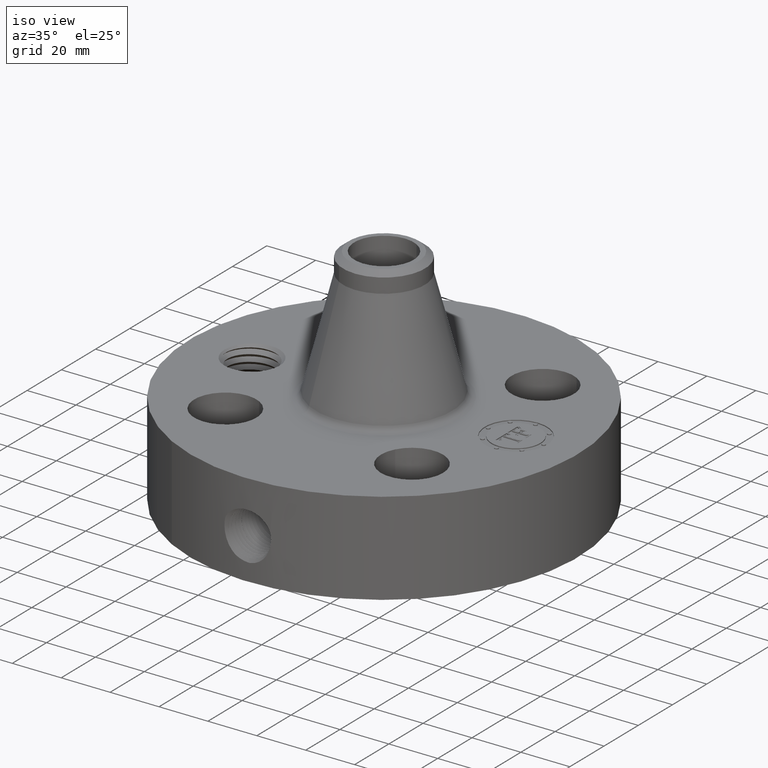
[diagram: clean part render]
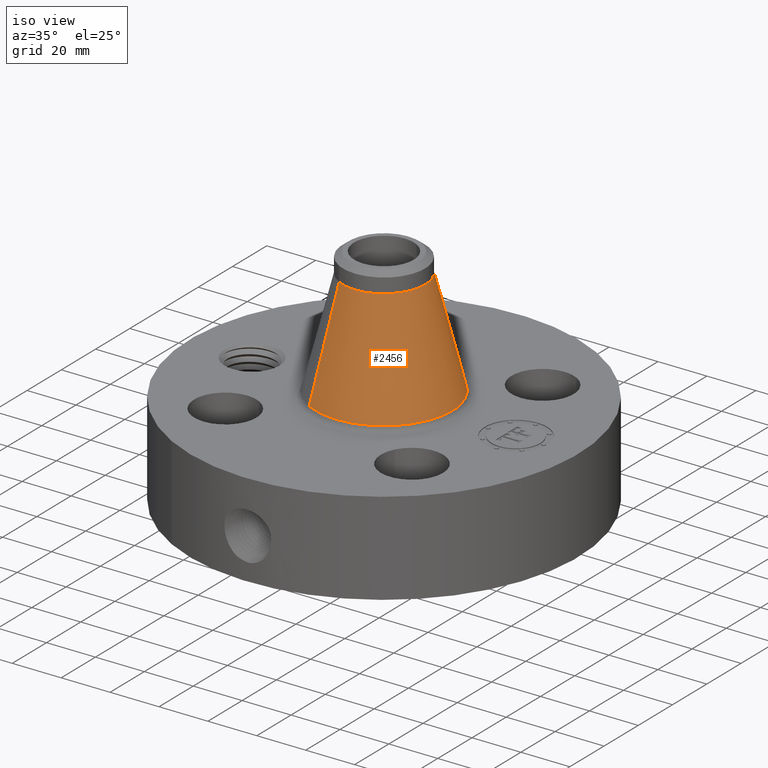
[diagram: same view with one face highlighted and labeled with its STEP entity id]
A machine part, iso view. The second image highlights one B-rep face of the part: STEP entity #2456.
In plain terms, the highlighted conical surface has half-angle 14.447 deg.
Its self-contained STEP definition (entity closure, byte-faithful):
#1842=AXIS2_PLACEMENT_3D('Circle Axis2P3D',#1840,#1841,$) ;
#2429=AXIS2_PLACEMENT_3D('Cone Axis2P3D',#2426,#2427,#2428) ;
#2440=AXIS2_PLACEMENT_3D('Circle Axis2P3D',#2438,#2439,$) ;
#1837=CARTESIAN_POINT('Vertex',(0.528229843363,0.966918242518,1.84006221555)) ;
#1840=CARTESIAN_POINT('Axis2P3D Location',(0.,0.,1.84006221555)) ;
#1844=CARTESIAN_POINT('Vertex',(-0.528229843363,-0.966918242518,1.84006221555)) ;
#2426=CARTESIAN_POINT('Axis2P3D Location',(0.,0.,3.55492912713)) ;
#2431=CARTESIAN_POINT('Line Origine',(0.422325349421,0.773061366684,2.69749567134)) ;
#2435=CARTESIAN_POINT('Vertex',(0.31642085548,0.57920449085,3.55492912713)) ;
#2438=CARTESIAN_POINT('Axis2P3D Location',(0.,0.,3.55492912713)) ;
#2442=CARTESIAN_POINT('Vertex',(-0.31642085548,-0.57920449085,3.55492912713)) ;
#2445=CARTESIAN_POINT('Line Origine',(-0.422325349421,-0.773061366684,2.69749567134)) ;
#1841=DIRECTION('Axis2P3D Direction',(0.,0.,-0.0393700787402)) ;
#2427=DIRECTION('Axis2P3D Direction',(0.,0.,-0.0393700787402)) ;
#2428=DIRECTION('Axis2P3D XDirection',(-0.0188750212049,-0.0345504945626,0.)) ;
#2432=DIRECTION('Vector Direction',(0.00470896930408,0.00861971049304,-0.0381251793322)) ;
#2439=DIRECTION('Axis2P3D Direction',(0.,0.,-0.0393700787402)) ;
#2446=DIRECTION('Vector Direction',(-0.00470896930408,-0.00861971049304,-0.0381251793322)) ;
#2433=VECTOR('Line Direction',#2432,0.0393700787402) ;
#2447=VECTOR('Line Direction',#2446,0.0393700787402) ;
#2451=ORIENTED_EDGE('',*,*,#1846,.F.) ;
#2452=ORIENTED_EDGE('',*,*,#2437,.T.) ;
#2453=ORIENTED_EDGE('',*,*,#2444,.T.) ;
#2454=ORIENTED_EDGE('',*,*,#2449,.F.) ;
#2456=ADVANCED_FACE('PartBody',(#2455),#2430,.T.) ;
#1843=CIRCLE('generated circle',#1842,1.10179746557) ;
#2441=CIRCLE('generated circle',#2440,0.660000000003) ;
#2430=CONICAL_SURFACE('Cone',#2429,0.660000000003,0.252144826006) ;
#1846=EDGE_CURVE('',#1838,#1845,#1843,.T.) ;
#2437=EDGE_CURVE('',#1838,#2436,#2434,.F.) ;
#2444=EDGE_CURVE('',#2436,#2443,#2441,.T.) ;
#2449=EDGE_CURVE('',#1845,#2443,#2448,.F.) ;
#2450=EDGE_LOOP('',(#2451,#2452,#2453,#2454)) ;
#2455=FACE_OUTER_BOUND('',#2450,.T.) ;
#2434=LINE('Line',#2431,#2433) ;
#2448=LINE('Line',#2445,#2447) ;
#1838=VERTEX_POINT('',#1837) ;
#1845=VERTEX_POINT('',#1844) ;
#2436=VERTEX_POINT('',#2435) ;
#2443=VERTEX_POINT('',#2442) ;